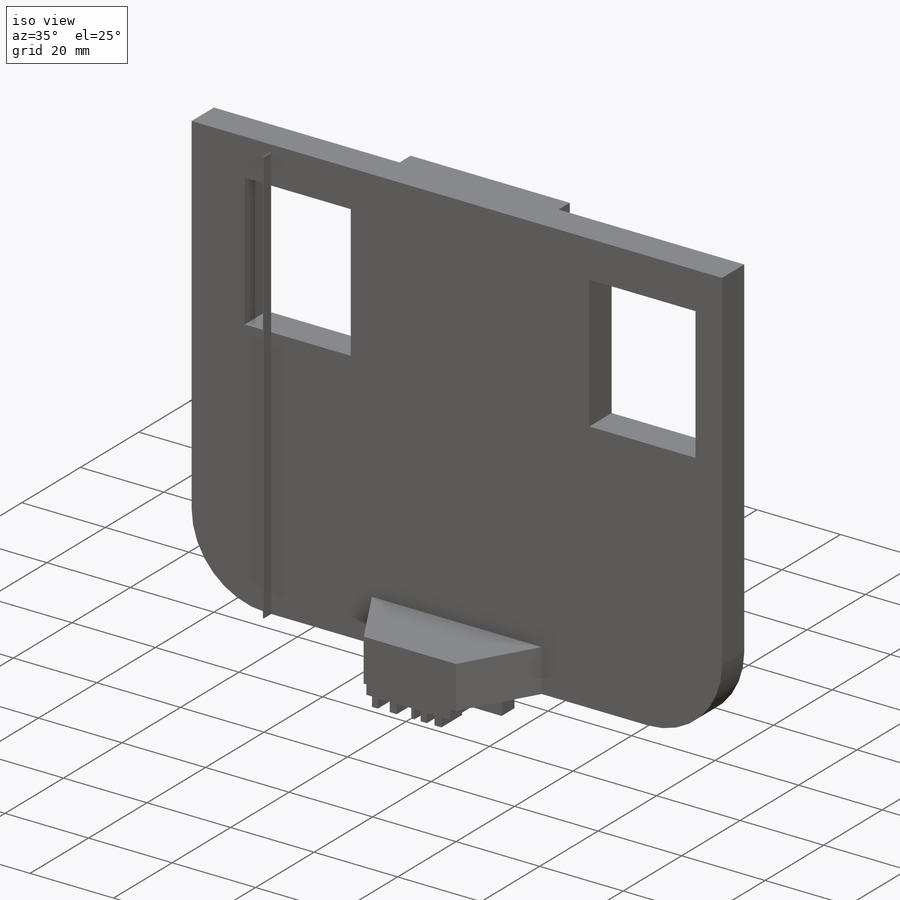
[diagram: iso view]
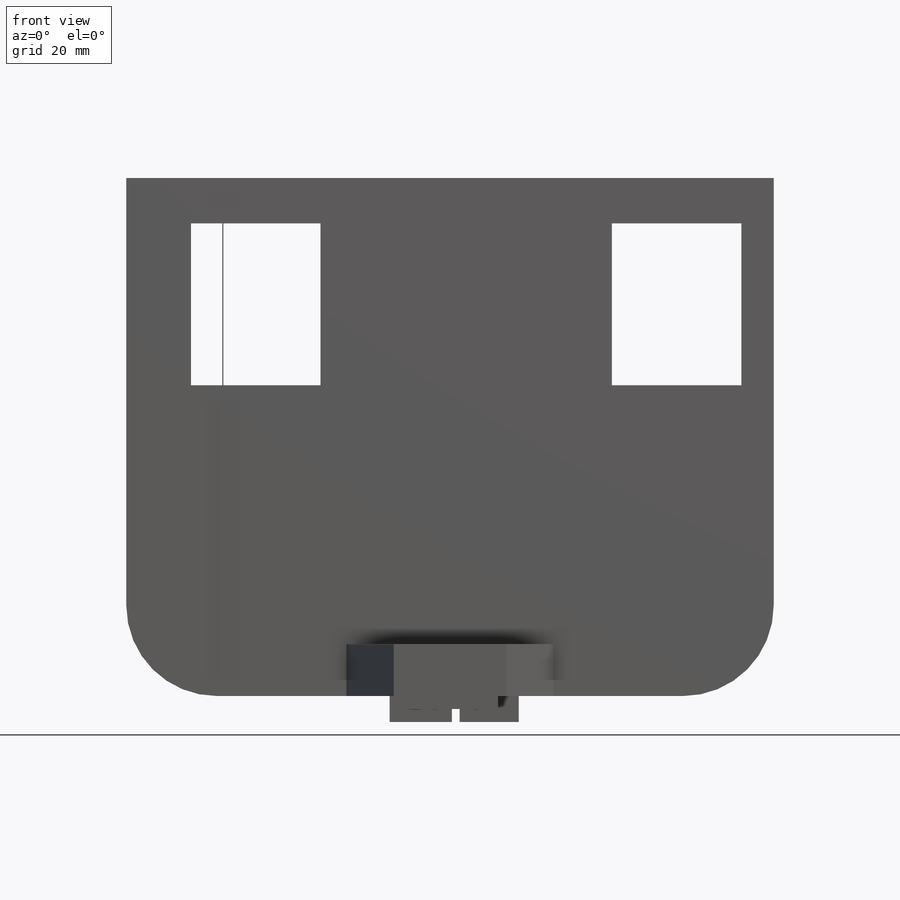
[diagram: front view]
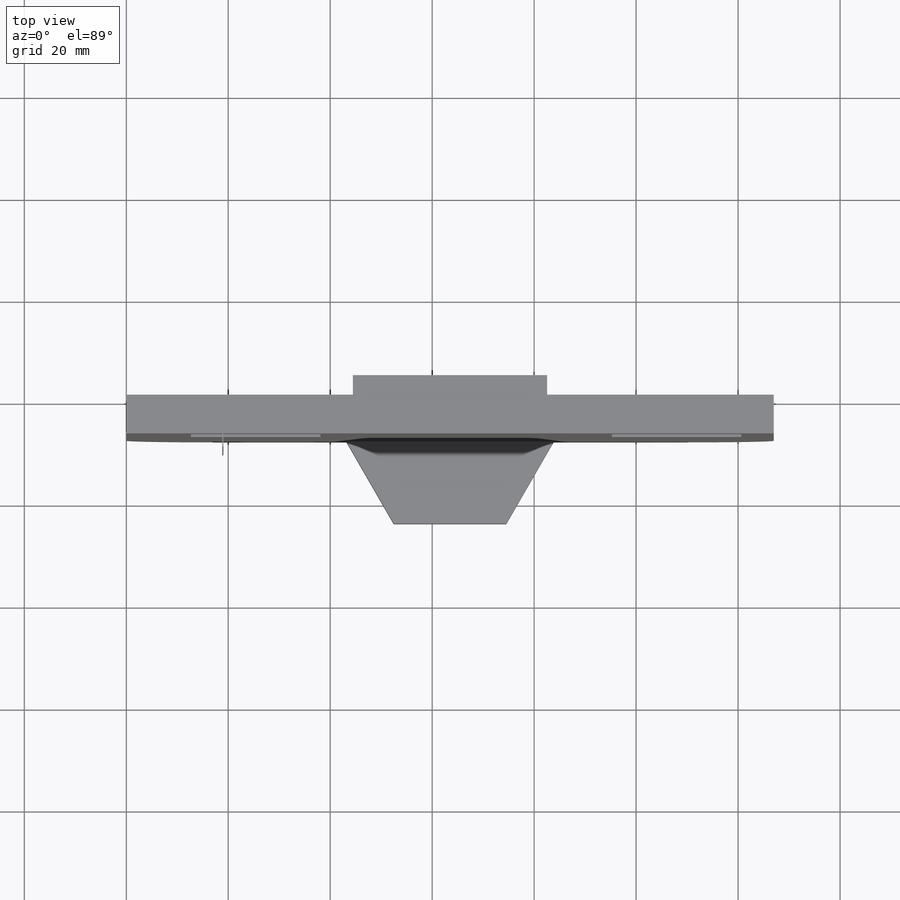
[diagram: top view]
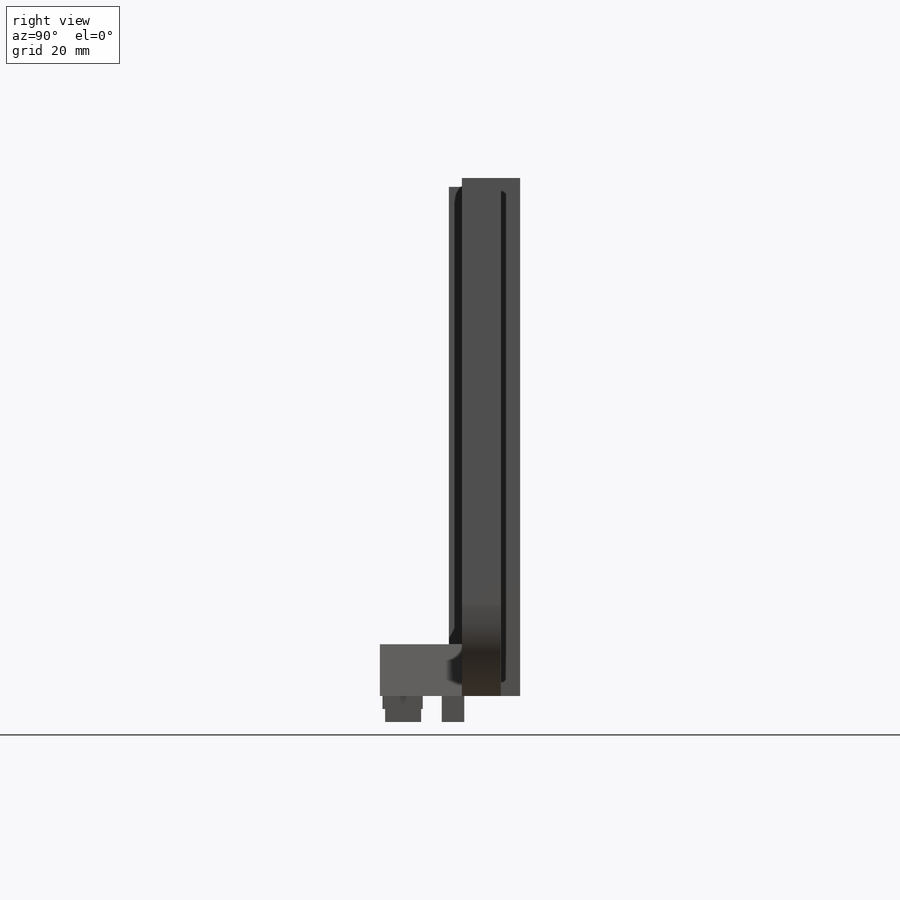
[diagram: right view]
SOLIDWORKS PART (.sldprt)
format: sldprt  version: not decoded by parser v0  size: 568,832 bytes
history: native  units: mm
features: sketch x8, extrude x6, cut_extrude x2, material x1, fillet x1 (+11 scaffold rows collapsed)
feature tree (29):
  scaffold x11  (default folders/planes/origin — collapsed)
  material  "Material <not specified>"
  sketch  "Sketch1"  dims[D1=127.0mm D2=101.6mm]
  extrude  "Boss-Extrude1"  Depth=7.62mm
  sketch  "Sketch3"  dims[D1=38.1mm D2=44.45mm]
  extrude  "Boss-Extrude2"  Depth=3.81mm
  sketch  "Sketch4"  dims[D1=25.4mm D2=31.75mm D3=31.75mm D4=25.4mm D5=107.95mm D6=6.35mm D7=8.89mm D8=8.89mm]
  cut_extrude  "Cut-Extrude1"  Depth=7.62mm
  fillet  "Fillet1"  Radius=17.78mm
  sketch  "Sketch5"  dims[c1.D1=25.4mm c1.D2=25.4mm c1.D3=~7.631413mm c2.D3=60.0deg c2.D4=~18.566072mm c3.D4=60.0deg]
  extrude  "Boss-Extrude3"  Depth=10.16mm
  sketch  "Sketch6"  dims[D1=1.27mm]
  extrude  "Boss-Extrude4"  Depth=5.08mm
  sketch  "Sketch7"
  cut_extrude  "Cut-Extrude2"  Depth=5.08mm
  sketch  "Sketch8"
  extrude  "Boss-Extrude5"  Depth=2.54mm
  sketch  "Sketch9"  dims[D1=~0.213588mm D2=19.05mm]
  extrude  "Boss-Extrude6"  Depth=2.54mm
decode coverage: 15 of 17 modeling features carry decoded parameters
note: ~ marks probable driven/reference dimensions
note: suppression state not decoded; provenance and decode notes live in map.json
